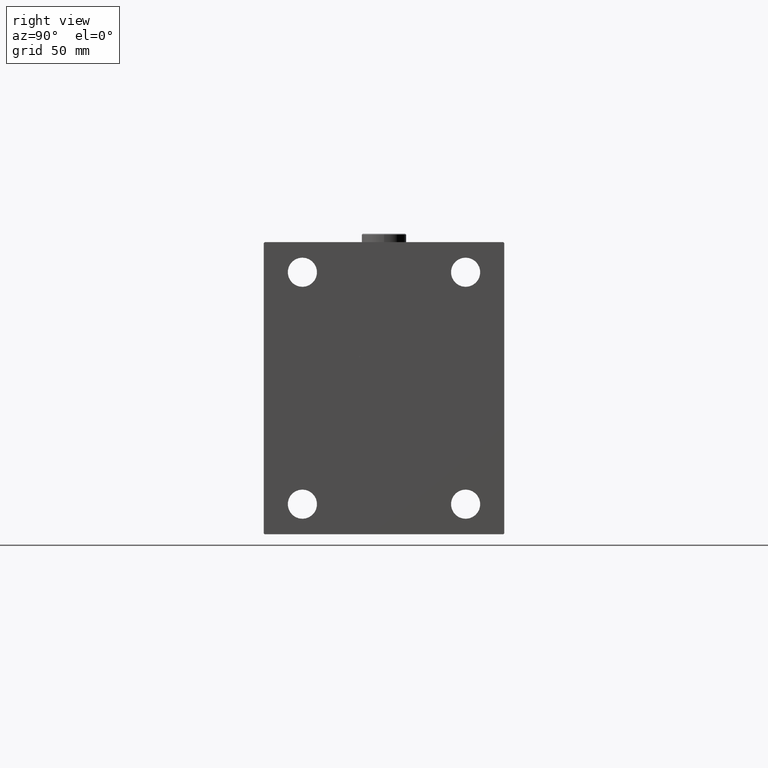
[diagram: clean part render]
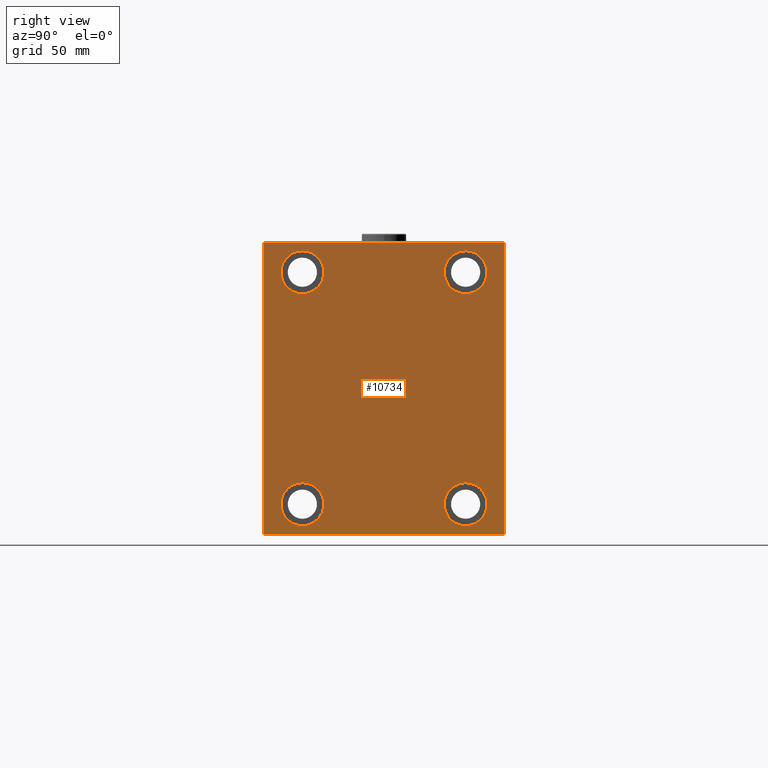
[diagram: same view with one face highlighted and labeled with its STEP entity id]
A machine part, right view. The second image highlights one B-rep face of the part: STEP entity #10734.
In plain terms, the highlighted planar face has unit normal (1, 0, 0).
Its self-contained STEP definition (entity closure, byte-faithful):
#958 = ORIENTED_EDGE ( 'NONE', *, *, #25672, .T. ) ;
#1137 = ORIENTED_EDGE ( 'NONE', *, *, #34267, .T. ) ;
#1397 = CARTESIAN_POINT ( 'NONE',  ( 225.0000000000000000, 70.00000000000001421, 85.00000000000000000 ) ) ;
#1412 = CARTESIAN_POINT ( 'NONE',  ( 225.0000000000000000, 70.00000000000001421, 84.50000000000001421 ) ) ;
#1548 = ORIENTED_EDGE ( 'NONE', *, *, #14759, .T. ) ;
#2055 = LINE ( 'NONE', #47193, #3856 ) ;
#2267 = EDGE_LOOP ( 'NONE', ( #14601, #5797 ) ) ;
#2465 = CARTESIAN_POINT ( 'NONE',  ( 225.0000000000000000, 47.50000000000000711, 55.00000000000000000 ) ) ;
#2629 = LINE ( 'NONE', #39956, #19734 ) ;
#2786 = AXIS2_PLACEMENT_3D ( 'NONE', #13841, #25083, #14079 ) ;
#2894 = CARTESIAN_POINT ( 'NONE',  ( 225.0000000000000000, -69.99999999999998579, -84.50000000000004263 ) ) ;
#3680 = VERTEX_POINT ( 'NONE', #31588 ) ;
#3856 = VECTOR ( 'NONE', #21073, 1000.000000000000114 ) ;
#4010 = LINE ( 'NONE', #31257, #43820 ) ;
#4504 = CARTESIAN_POINT ( 'NONE',  ( 225.0000000000000000, -69.49999999999997158, 84.99999999999998579 ) ) ;
#4530 = EDGE_LOOP ( 'NONE', ( #33747, #6104 ) ) ;
#5308 = EDGE_CURVE ( 'NONE', #10128, #5564, #28855, .T. ) ;
#5506 = VECTOR ( 'NONE', #34576, 1000.000000000000000 ) ;
#5564 = VERTEX_POINT ( 'NONE', #18952 ) ;
#5797 = ORIENTED_EDGE ( 'NONE', *, *, #44516, .T. ) ;
#5855 = ORIENTED_EDGE ( 'NONE', *, *, #28679, .T. ) ;
#5934 = VERTEX_POINT ( 'NONE', #4504 ) ;
#6104 = ORIENTED_EDGE ( 'NONE', *, *, #43259, .T. ) ;
#6602 = CIRCLE ( 'NONE', #44783, 12.49999999999999645 ) ;
#6846 = CARTESIAN_POINT ( 'NONE',  ( 225.0000000000000000, 47.50000000000000711, 67.50000000000000000 ) ) ;
#7434 = CIRCLE ( 'NONE', #43331, 12.49999999999999645 ) ;
#7586 = ORIENTED_EDGE ( 'NONE', *, *, #47450, .T. ) ;
#9044 = CARTESIAN_POINT ( 'NONE',  ( 225.0000000000000000, -47.49999999999999289, -67.50000000000000000 ) ) ;
#9801 = EDGE_CURVE ( 'NONE', #5934, #3680, #43670, .T. ) ;
#10037 = ORIENTED_EDGE ( 'NONE', *, *, #9801, .T. ) ;
#10128 = VERTEX_POINT ( 'NONE', #37177 ) ;
#10433 = DIRECTION ( 'NONE',  ( 0.000000000000000000, 0.000000000000000000, 1.000000000000000000 ) ) ;
#10637 = VERTEX_POINT ( 'NONE', #35103 ) ;
#10734 = ADVANCED_FACE ( 'NONE', ( #32876, #14315, #43633, #18222, #33352 ), #47768, .T. ) ;
#10775 = EDGE_CURVE ( 'NONE', #26430, #10637, #33944, .T. ) ;
#10795 = CARTESIAN_POINT ( 'NONE',  ( 225.0000000000000000, -69.99999999999998579, -85.00000000000002842 ) ) ;
#11491 = EDGE_CURVE ( 'NONE', #29530, #45897, #7434, .T. ) ;
#11980 = EDGE_LOOP ( 'NONE', ( #26555, #1548 ) ) ;
#12422 = EDGE_CURVE ( 'NONE', #28073, #31306, #23070, .T. ) ;
#12496 = ORIENTED_EDGE ( 'NONE', *, *, #35656, .T. ) ;
#13167 = DIRECTION ( 'NONE',  ( 0.000000000000000000, 0.000000000000000000, 1.000000000000000000 ) ) ;
#13177 = DIRECTION ( 'NONE',  ( 0.000000000000000000, 0.000000000000000000, 1.000000000000000000 ) ) ;
#13362 = DIRECTION ( 'NONE',  ( 0.000000000000000000, 0.000000000000000000, 1.000000000000000000 ) ) ;
#13809 = CARTESIAN_POINT ( 'NONE',  ( 225.0000000000000000, -47.49999999999997868, 55.00000000000000000 ) ) ;
#13841 = CARTESIAN_POINT ( 'NONE',  ( 225.0000000000000000, 0.000000000000000000, 0.000000000000000000 ) ) ;
#14079 = DIRECTION ( 'NONE',  ( 0.000000000000000000, 0.000000000000000000, -1.000000000000000000 ) ) ;
#14315 = FACE_BOUND ( 'NONE', #2267, .T. ) ;
#14371 = EDGE_LOOP ( 'NONE', ( #39115, #7586 ) ) ;
#14601 = ORIENTED_EDGE ( 'NONE', *, *, #26315, .T. ) ;
#14759 = EDGE_CURVE ( 'NONE', #10637, #26430, #42629, .T. ) ;
#14797 = ORIENTED_EDGE ( 'NONE', *, *, #43665, .T. ) ;
#14878 = VECTOR ( 'NONE', #39887, 1000.000000000000114 ) ;
#18019 = CARTESIAN_POINT ( 'NONE',  ( 225.0000000000000000, -47.49999999999997868, 80.00000000000001421 ) ) ;
#18222 = FACE_BOUND ( 'NONE', #4530, .T. ) ;
#18625 = DIRECTION ( 'NONE',  ( 0.000000000000000000, 0.000000000000000000, -1.000000000000000000 ) ) ;
#18849 = VERTEX_POINT ( 'NONE', #1412 ) ;
#18863 = CARTESIAN_POINT ( 'NONE',  ( 225.0000000000000000, -69.99999999999998579, 84.99999999999998579 ) ) ;
#18952 = CARTESIAN_POINT ( 'NONE',  ( 225.0000000000000000, 69.50000000000007105, -85.00000000000001421 ) ) ;
#19017 = CARTESIAN_POINT ( 'NONE',  ( 225.0000000000000000, -47.49999999999997868, 67.50000000000000000 ) ) ;
#19734 = VECTOR ( 'NONE', #36292, 1000.000000000000000 ) ;
#20891 = CARTESIAN_POINT ( 'NONE',  ( 225.0000000000000000, 69.50000000000004263, 85.00000000000000000 ) ) ;
#21073 = DIRECTION ( 'NONE',  ( -0.000000000000000000, 0.7071067811865376918, -0.7071067811865573427 ) ) ;
#21345 = VERTEX_POINT ( 'NONE', #18019 ) ;
#21814 = VECTOR ( 'NONE', #18625, 1000.000000000000000 ) ;
#22269 = DIRECTION ( 'NONE',  ( -1.000000000000000000, -0.000000000000000000, -0.000000000000000000 ) ) ;
#23070 = CIRCLE ( 'NONE', #39453, 12.50000000000001066 ) ;
#23217 = CARTESIAN_POINT ( 'NONE',  ( 225.0000000000000000, -47.49999999999999289, -67.50000000000000000 ) ) ;
#23695 = DIRECTION ( 'NONE',  ( -1.000000000000000000, -0.000000000000000000, -0.000000000000000000 ) ) ;
#23818 = AXIS2_PLACEMENT_3D ( 'NONE', #36543, #47535, #10433 ) ;
#23837 = LINE ( 'NONE', #1397, #5506 ) ;
#24153 = VERTEX_POINT ( 'NONE', #2894 ) ;
#24518 = CIRCLE ( 'NONE', #33078, 12.50000000000001066 ) ;
#25004 = CARTESIAN_POINT ( 'NONE',  ( 225.0000000000000000, 77.25000000000099476, 77.24999999999884892 ) ) ;
#25083 = DIRECTION ( 'NONE',  ( 1.000000000000000000, 0.000000000000000000, 0.000000000000000000 ) ) ;
#25133 = ORIENTED_EDGE ( 'NONE', *, *, #31745, .T. ) ;
#25209 = VECTOR ( 'NONE', #25687, 1000.000000000000000 ) ;
#25672 = EDGE_CURVE ( 'NONE', #24153, #10128, #2055, .T. ) ;
#25687 = DIRECTION ( 'NONE',  ( 0.000000000000000000, 1.000000000000000000, 9.912705577010325549E-17 ) ) ;
#26051 = CARTESIAN_POINT ( 'NONE',  ( 225.0000000000000000, -47.49999999999999289, -80.00000000000000000 ) ) ;
#26315 = EDGE_CURVE ( 'NONE', #26863, #21345, #27238, .T. ) ;
#26430 = VERTEX_POINT ( 'NONE', #28518 ) ;
#26555 = ORIENTED_EDGE ( 'NONE', *, *, #10775, .T. ) ;
#26863 = VERTEX_POINT ( 'NONE', #13809 ) ;
#27052 = DIRECTION ( 'NONE',  ( -1.000000000000000000, -0.000000000000000000, -0.000000000000000000 ) ) ;
#27078 = DIRECTION ( 'NONE',  ( -1.000000000000000000, -0.000000000000000000, -0.000000000000000000 ) ) ;
#27238 = CIRCLE ( 'NONE', #45948, 12.50000000000001066 ) ;
#27541 = AXIS2_PLACEMENT_3D ( 'NONE', #27774, #27052, #31191 ) ;
#27774 = CARTESIAN_POINT ( 'NONE',  ( 225.0000000000000000, -47.49999999999997868, 67.50000000000000000 ) ) ;
#28073 = VERTEX_POINT ( 'NONE', #2465 ) ;
#28502 = DIRECTION ( 'NONE',  ( -1.000000000000000000, -0.000000000000000000, -0.000000000000000000 ) ) ;
#28518 = CARTESIAN_POINT ( 'NONE',  ( 225.0000000000000000, 47.50000000000000711, -80.00000000000000000 ) ) ;
#28679 = EDGE_CURVE ( 'NONE', #37393, #5934, #23837, .T. ) ;
#28855 = LINE ( 'NONE', #10795, #25209 ) ;
#28999 = DIRECTION ( 'NONE',  ( 0.000000000000000000, -0.7071067811865672237, -0.7071067811865279218 ) ) ;
#29123 = LINE ( 'NONE', #25004, #14878 ) ;
#29530 = VERTEX_POINT ( 'NONE', #26051 ) ;
#30588 = ORIENTED_EDGE ( 'NONE', *, *, #5308, .T. ) ;
#30821 = LINE ( 'NONE', #18863, #21814 ) ;
#31191 = DIRECTION ( 'NONE',  ( 0.000000000000000000, 0.000000000000000000, 1.000000000000000000 ) ) ;
#31257 = CARTESIAN_POINT ( 'NONE',  ( 225.0000000000000000, 77.24999999999907629, -77.25000000000123634 ) ) ;
#31306 = VERTEX_POINT ( 'NONE', #46548 ) ;
#31575 = VECTOR ( 'NONE', #28999, 1000.000000000000000 ) ;
#31588 = CARTESIAN_POINT ( 'NONE',  ( 225.0000000000000000, -69.99999999999998579, 84.49999999999998579 ) ) ;
#31745 = EDGE_CURVE ( 'NONE', #3680, #24153, #30821, .T. ) ;
#31960 = CARTESIAN_POINT ( 'NONE',  ( 225.0000000000000000, 70.00000000000002842, -84.50000000000007105 ) ) ;
#32876 = FACE_BOUND ( 'NONE', #11980, .T. ) ;
#33078 = AXIS2_PLACEMENT_3D ( 'NONE', #48150, #22269, #37162 ) ;
#33352 = FACE_OUTER_BOUND ( 'NONE', #35373, .T. ) ;
#33747 = ORIENTED_EDGE ( 'NONE', *, *, #11491, .T. ) ;
#33919 = DIRECTION ( 'NONE',  ( 0.000000000000000000, 0.000000000000000000, 1.000000000000000000 ) ) ;
#33944 = CIRCLE ( 'NONE', #23818, 12.49999999999999645 ) ;
#34267 = EDGE_CURVE ( 'NONE', #18849, #37393, #29123, .T. ) ;
#34576 = DIRECTION ( 'NONE',  ( 0.000000000000000000, -1.000000000000000000, -9.912705577010325549E-17 ) ) ;
#35103 = CARTESIAN_POINT ( 'NONE',  ( 225.0000000000000000, 47.50000000000000711, -55.00000000000000711 ) ) ;
#35373 = EDGE_LOOP ( 'NONE', ( #5855, #10037, #25133, #958, #30588, #12496, #14797, #1137 ) ) ;
#35392 = DIRECTION ( 'NONE',  ( -1.000000000000000000, -0.000000000000000000, -0.000000000000000000 ) ) ;
#35656 = EDGE_CURVE ( 'NONE', #5564, #43254, #4010, .T. ) ;
#36292 = DIRECTION ( 'NONE',  ( 0.000000000000000000, -8.163404592832031500E-17, 1.000000000000000000 ) ) ;
#36543 = CARTESIAN_POINT ( 'NONE',  ( 225.0000000000000000, 47.50000000000000711, -67.50000000000000000 ) ) ;
#36843 = DIRECTION ( 'NONE',  ( 0.000000000000000000, 0.000000000000000000, 1.000000000000000000 ) ) ;
#37162 = DIRECTION ( 'NONE',  ( 0.000000000000000000, 0.000000000000000000, 1.000000000000000000 ) ) ;
#37177 = CARTESIAN_POINT ( 'NONE',  ( 225.0000000000000000, -69.50000000000001421, -85.00000000000002842 ) ) ;
#37393 = VERTEX_POINT ( 'NONE', #20891 ) ;
#38455 = CIRCLE ( 'NONE', #27541, 12.50000000000001066 ) ;
#39115 = ORIENTED_EDGE ( 'NONE', *, *, #12422, .T. ) ;
#39453 = AXIS2_PLACEMENT_3D ( 'NONE', #6846, #40280, #36843 ) ;
#39887 = DIRECTION ( 'NONE',  ( -0.000000000000000000, -0.7071067811865376918, 0.7071067811865573427 ) ) ;
#39956 = CARTESIAN_POINT ( 'NONE',  ( 225.0000000000000000, 70.00000000000002842, -85.00000000000001421 ) ) ;
#40280 = DIRECTION ( 'NONE',  ( -1.000000000000000000, -0.000000000000000000, -0.000000000000000000 ) ) ;
#40708 = CARTESIAN_POINT ( 'NONE',  ( 225.0000000000000000, -77.24999999999803890, 77.25000000000234479 ) ) ;
#42569 = CARTESIAN_POINT ( 'NONE',  ( 225.0000000000000000, -47.49999999999999289, -55.00000000000000711 ) ) ;
#42629 = CIRCLE ( 'NONE', #46484, 12.49999999999999645 ) ;
#42976 = DIRECTION ( 'NONE',  ( -0.000000000000000000, 0.7071067811865573427, 0.7071067811865376918 ) ) ;
#43254 = VERTEX_POINT ( 'NONE', #31960 ) ;
#43259 = EDGE_CURVE ( 'NONE', #45897, #29530, #6602, .T. ) ;
#43331 = AXIS2_PLACEMENT_3D ( 'NONE', #23217, #28502, #13362 ) ;
#43633 = FACE_BOUND ( 'NONE', #14371, .T. ) ;
#43665 = EDGE_CURVE ( 'NONE', #43254, #18849, #2629, .T. ) ;
#43670 = LINE ( 'NONE', #40708, #31575 ) ;
#43820 = VECTOR ( 'NONE', #42976, 1000.000000000000114 ) ;
#44516 = EDGE_CURVE ( 'NONE', #21345, #26863, #38455, .T. ) ;
#44783 = AXIS2_PLACEMENT_3D ( 'NONE', #9044, #35392, #13167 ) ;
#45897 = VERTEX_POINT ( 'NONE', #42569 ) ;
#45948 = AXIS2_PLACEMENT_3D ( 'NONE', #19017, #27078, #33919 ) ;
#46484 = AXIS2_PLACEMENT_3D ( 'NONE', #47106, #23695, #13177 ) ;
#46548 = CARTESIAN_POINT ( 'NONE',  ( 225.0000000000000000, 47.50000000000000711, 80.00000000000001421 ) ) ;
#47106 = CARTESIAN_POINT ( 'NONE',  ( 225.0000000000000000, 47.50000000000000711, -67.50000000000000000 ) ) ;
#47193 = CARTESIAN_POINT ( 'NONE',  ( 225.0000000000000000, -77.25000000000099476, -77.24999999999884892 ) ) ;
#47450 = EDGE_CURVE ( 'NONE', #31306, #28073, #24518, .T. ) ;
#47535 = DIRECTION ( 'NONE',  ( -1.000000000000000000, -0.000000000000000000, -0.000000000000000000 ) ) ;
#47768 = PLANE ( 'NONE',  #2786 ) ;
#48150 = CARTESIAN_POINT ( 'NONE',  ( 225.0000000000000000, 47.50000000000000711, 67.50000000000000000 ) ) ;